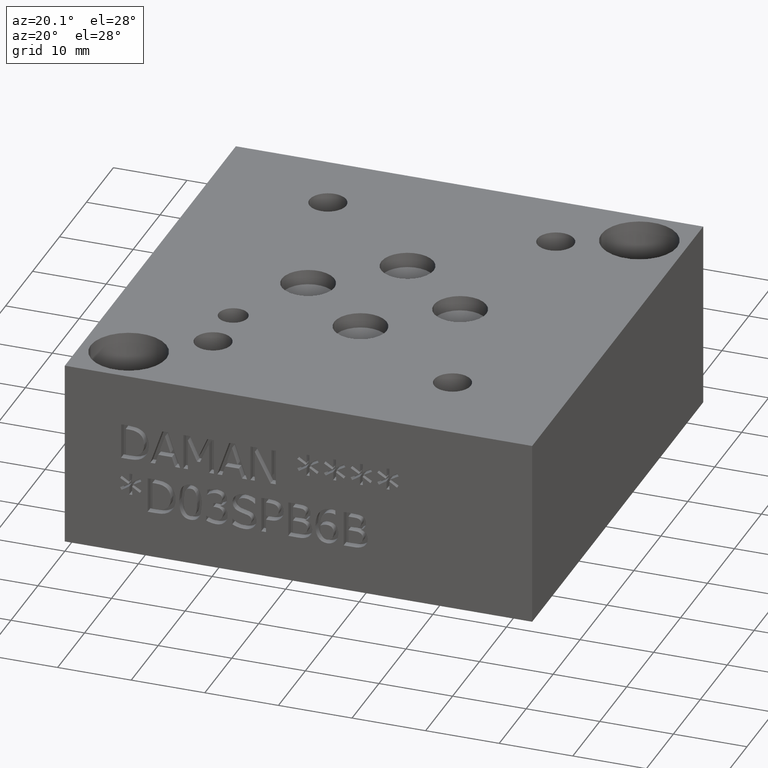
[diagram: clean part render]
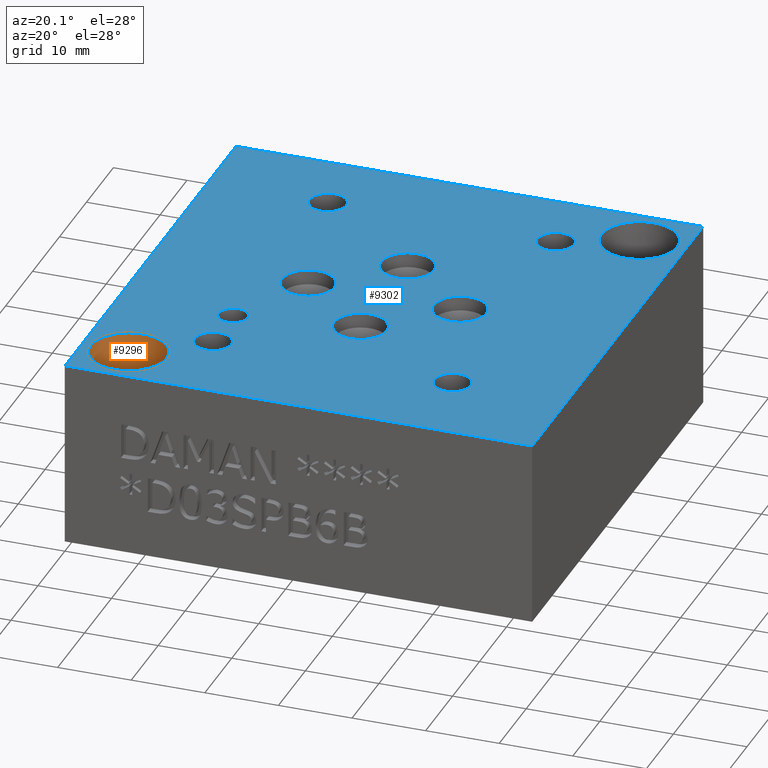
[diagram: same view with the hole feature highlighted: cylindrical wall and planar end face, labeled with their STEP entity ids]
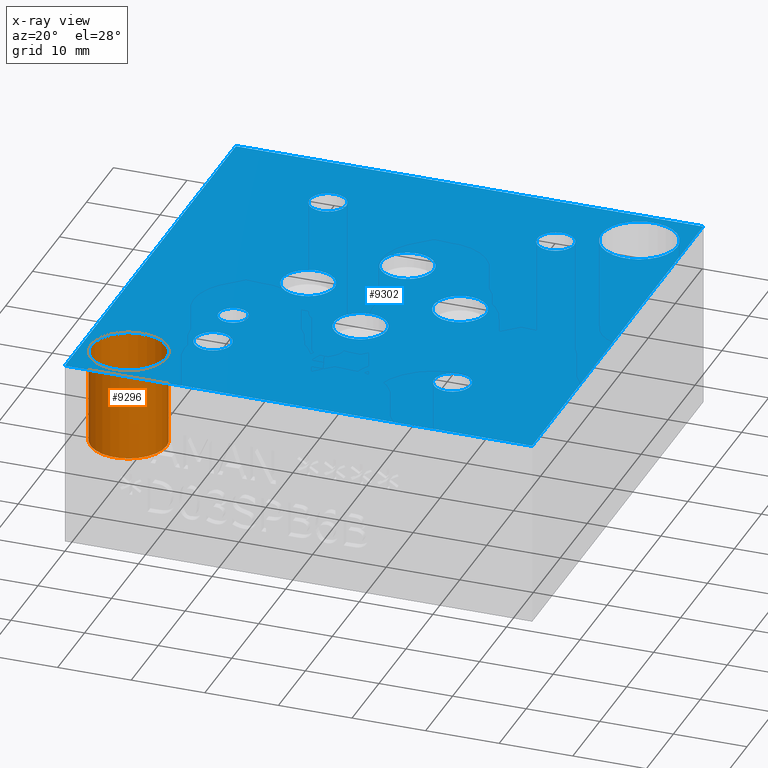
[diagram: x-ray of the same camera — body ghosted, the hole faces saturated]
A machine part, auxiliary view. The highlighted faces form one hole feature of diameter 10.3124 mm: the cylindrical wall (entity #9296, orange) and its adjacent planar end face (entity #9302, blue) — they share a circular edge in the B-rep.
The next image is the same camera in x-ray (body ghosted, the hole faces saturated) — the bore reads through the body.
Wall:
#62=CYLINDRICAL_SURFACE('',#9761,5.1562);
#179=CIRCLE('',#9758,5.1562);
#180=CIRCLE('',#9759,5.1562);
#182=CIRCLE('',#9762,5.1562);
#183=CIRCLE('',#9763,5.1562);
#1000=FACE_OUTER_BOUND('',#1530,.T.);
#1530=EDGE_LOOP('',(#8248,#8249,#8250,#8251,#8252,#8253));
#2422=LINE('',#15990,#3302);
#3302=VECTOR('',#11538,5.1562);
#4455=VERTEX_POINT('',#15979);
#4456=VERTEX_POINT('',#15980);
#4458=VERTEX_POINT('',#15986);
#4459=VERTEX_POINT('',#15987);
#5730=EDGE_CURVE('',#4455,#4456,#179,.T.);
#5731=EDGE_CURVE('',#4456,#4455,#180,.T.);
#5733=EDGE_CURVE('',#4458,#4459,#182,.T.);
#5734=EDGE_CURVE('',#4459,#4458,#183,.T.);
#5735=EDGE_CURVE('',#4459,#4456,#2422,.T.);
#8248=ORIENTED_EDGE('',*,*,#5733,.F.);
#8249=ORIENTED_EDGE('',*,*,#5734,.F.);
#8250=ORIENTED_EDGE('',*,*,#5735,.T.);
#8251=ORIENTED_EDGE('',*,*,#5730,.F.);
#8252=ORIENTED_EDGE('',*,*,#5731,.F.);
#8253=ORIENTED_EDGE('',*,*,#5735,.F.);
#9296=ADVANCED_FACE('',(#1000),#62,.F.);
#9758=AXIS2_PLACEMENT_3D('',#15981,#11526,#11527);
#9759=AXIS2_PLACEMENT_3D('',#15982,#11528,#11529);
#9761=AXIS2_PLACEMENT_3D('',#15985,#11532,#11533);
#9762=AXIS2_PLACEMENT_3D('',#15988,#11534,#11535);
#9763=AXIS2_PLACEMENT_3D('',#15989,#11536,#11537);
#11526=DIRECTION('center_axis',(0.,0.,1.));
#11527=DIRECTION('ref_axis',(1.,0.,0.));
#11528=DIRECTION('center_axis',(0.,0.,1.));
#11529=DIRECTION('ref_axis',(1.,0.,0.));
#11532=DIRECTION('center_axis',(0.,0.,1.));
#11533=DIRECTION('ref_axis',(1.,0.,0.));
#11534=DIRECTION('center_axis',(0.,0.,-1.));
#11535=DIRECTION('ref_axis',(1.,0.,0.));
#11536=DIRECTION('center_axis',(0.,0.,-1.));
#11537=DIRECTION('ref_axis',(1.,0.,0.));
#11538=DIRECTION('',(0.,0.,-1.));
#15979=CARTESIAN_POINT('',(11.5062,6.35,12.7));
#15980=CARTESIAN_POINT('',(1.1938,6.35,12.7));
#15981=CARTESIAN_POINT('Origin',(6.35,6.35,12.7));
#15982=CARTESIAN_POINT('Origin',(6.35,6.35,12.7));
#15985=CARTESIAN_POINT('Origin',(6.35,6.35,19.05));
#15986=CARTESIAN_POINT('',(11.5062,6.35,25.4));
#15987=CARTESIAN_POINT('',(1.1938,6.35,25.4));
#15988=CARTESIAN_POINT('Origin',(6.35,6.35,25.4));
#15989=CARTESIAN_POINT('Origin',(6.35,6.35,25.4));
#15990=CARTESIAN_POINT('',(1.1938,6.35,19.05));
End face:
#128=CIRCLE('',#9679,3.5687);
#129=CIRCLE('',#9680,3.5687);
#132=CIRCLE('',#9685,3.5687);
#133=CIRCLE('',#9686,3.5687);
#136=CIRCLE('',#9691,3.5687);
#137=CIRCLE('',#9692,3.5687);
#140=CIRCLE('',#9697,3.5687);
#141=CIRCLE('',#9698,3.5687);
#144=CIRCLE('',#9703,1.9812);
#145=CIRCLE('',#9704,1.9812);
#151=CIRCLE('',#9713,2.5019);
#152=CIRCLE('',#9714,2.5019);
#158=CIRCLE('',#9724,2.5019);
#159=CIRCLE('',#9725,2.5019);
#165=CIRCLE('',#9735,2.5019);
#166=CIRCLE('',#9736,2.5019);
#172=CIRCLE('',#9746,2.5019);
#173=CIRCLE('',#9747,2.5019);
#177=CIRCLE('',#9754,5.1562);
#178=CIRCLE('',#9755,5.1562);
#182=CIRCLE('',#9762,5.1562);
#183=CIRCLE('',#9763,5.1562);
#241=FACE_BOUND('',#1537,.T.);
#242=FACE_BOUND('',#1538,.T.);
#243=FACE_BOUND('',#1539,.T.);
#244=FACE_BOUND('',#1540,.T.);
#245=FACE_BOUND('',#1541,.T.);
#246=FACE_BOUND('',#1542,.T.);
#247=FACE_BOUND('',#1543,.T.);
#248=FACE_BOUND('',#1544,.T.);
#249=FACE_BOUND('',#1545,.T.);
#250=FACE_BOUND('',#1546,.T.);
#251=FACE_BOUND('',#1547,.T.);
#533=PLANE('',#9769);
#1006=FACE_OUTER_BOUND('',#1536,.T.);
#1536=EDGE_LOOP('',(#8273,#8274,#8275,#8276));
#1537=EDGE_LOOP('',(#8277,#8278));
#1538=EDGE_LOOP('',(#8279,#8280));
#1539=EDGE_LOOP('',(#8281,#8282));
#1540=EDGE_LOOP('',(#8283,#8284));
#1541=EDGE_LOOP('',(#8285,#8286));
#1542=EDGE_LOOP('',(#8287,#8288));
#1543=EDGE_LOOP('',(#8289,#8290));
#1544=EDGE_LOOP('',(#8291,#8292));
#1545=EDGE_LOOP('',(#8293,#8294));
#1546=EDGE_LOOP('',(#8295,#8296));
#1547=EDGE_LOOP('',(#8297,#8298));
#1859=LINE('',#14062,#2739);
#2424=LINE('',#15995,#3304);
#2426=LINE('',#15999,#3306);
#2428=LINE('',#16002,#3308);
#2739=VECTOR('',#10235,10.);
#3304=VECTOR('',#11544,10.);
#3306=VECTOR('',#11548,10.);
#3308=VECTOR('',#11552,10.);
#3943=VERTEX_POINT('',#14059);
#3944=VERTEX_POINT('',#14061);
#4396=VERTEX_POINT('',#15818);
#4397=VERTEX_POINT('',#15819);
#4401=VERTEX_POINT('',#15831);
#4402=VERTEX_POINT('',#15832);
#4406=VERTEX_POINT('',#15844);
#4407=VERTEX_POINT('',#15845);
#4411=VERTEX_POINT('',#15857);
#4412=VERTEX_POINT('',#15858);
#4416=VERTEX_POINT('',#15870);
#4417=VERTEX_POINT('',#15871);
#4424=VERTEX_POINT('',#15890);
#4425=VERTEX_POINT('',#15891);
#4432=VERTEX_POINT('',#15912);
#4433=VERTEX_POINT('',#15913);
#4440=VERTEX_POINT('',#15934);
#4441=VERTEX_POINT('',#15935);
#4448=VERTEX_POINT('',#15956);
#4449=VERTEX_POINT('',#15957);
#4453=VERTEX_POINT('',#15971);
#4454=VERTEX_POINT('',#15972);
#4458=VERTEX_POINT('',#15986);
#4459=VERTEX_POINT('',#15987);
#4460=VERTEX_POINT('',#15994);
#4461=VERTEX_POINT('',#15998);
#4992=EDGE_CURVE('',#3944,#3943,#1859,.T.);
#5656=EDGE_CURVE('',#4396,#4397,#128,.T.);
#5657=EDGE_CURVE('',#4397,#4396,#129,.T.);
#5662=EDGE_CURVE('',#4401,#4402,#132,.T.);
#5663=EDGE_CURVE('',#4402,#4401,#133,.T.);
#5668=EDGE_CURVE('',#4406,#4407,#136,.T.);
#5669=EDGE_CURVE('',#4407,#4406,#137,.T.);
#5674=EDGE_CURVE('',#4411,#4412,#140,.T.);
#5675=EDGE_CURVE('',#4412,#4411,#141,.T.);
#5680=EDGE_CURVE('',#4416,#4417,#144,.T.);
#5681=EDGE_CURVE('',#4417,#4416,#145,.T.);
#5689=EDGE_CURVE('',#4424,#4425,#151,.T.);
#5690=EDGE_CURVE('',#4425,#4424,#152,.T.);
#5699=EDGE_CURVE('',#4432,#4433,#158,.T.);
#5700=EDGE_CURVE('',#4433,#4432,#159,.T.);
#5709=EDGE_CURVE('',#4440,#4441,#165,.T.);
#5710=EDGE_CURVE('',#4441,#4440,#166,.T.);
#5719=EDGE_CURVE('',#4448,#4449,#172,.T.);
#5720=EDGE_CURVE('',#4449,#4448,#173,.T.);
#5726=EDGE_CURVE('',#4453,#4454,#177,.T.);
#5727=EDGE_CURVE('',#4454,#4453,#178,.T.);
#5733=EDGE_CURVE('',#4458,#4459,#182,.T.);
#5734=EDGE_CURVE('',#4459,#4458,#183,.T.);
#5737=EDGE_CURVE('',#4460,#3944,#2424,.T.);
#5739=EDGE_CURVE('',#4461,#4460,#2426,.T.);
#5741=EDGE_CURVE('',#3943,#4461,#2428,.T.);
#8273=ORIENTED_EDGE('',*,*,#4992,.T.);
#8274=ORIENTED_EDGE('',*,*,#5741,.T.);
#8275=ORIENTED_EDGE('',*,*,#5739,.T.);
#8276=ORIENTED_EDGE('',*,*,#5737,.T.);
#8277=ORIENTED_EDGE('',*,*,#5656,.T.);
#8278=ORIENTED_EDGE('',*,*,#5657,.T.);
#8279=ORIENTED_EDGE('',*,*,#5662,.T.);
#8280=ORIENTED_EDGE('',*,*,#5663,.T.);
#8281=ORIENTED_EDGE('',*,*,#5668,.T.);
#8282=ORIENTED_EDGE('',*,*,#5669,.T.);
#8283=ORIENTED_EDGE('',*,*,#5674,.T.);
#8284=ORIENTED_EDGE('',*,*,#5675,.T.);
#8285=ORIENTED_EDGE('',*,*,#5680,.T.);
#8286=ORIENTED_EDGE('',*,*,#5681,.T.);
#8287=ORIENTED_EDGE('',*,*,#5689,.T.);
#8288=ORIENTED_EDGE('',*,*,#5690,.T.);
#8289=ORIENTED_EDGE('',*,*,#5699,.T.);
#8290=ORIENTED_EDGE('',*,*,#5700,.T.);
#8291=ORIENTED_EDGE('',*,*,#5709,.T.);
#8292=ORIENTED_EDGE('',*,*,#5710,.T.);
#8293=ORIENTED_EDGE('',*,*,#5719,.T.);
#8294=ORIENTED_EDGE('',*,*,#5720,.T.);
#8295=ORIENTED_EDGE('',*,*,#5726,.T.);
#8296=ORIENTED_EDGE('',*,*,#5727,.T.);
#8297=ORIENTED_EDGE('',*,*,#5733,.T.);
#8298=ORIENTED_EDGE('',*,*,#5734,.T.);
#9302=ADVANCED_FACE('',(#1006,#241,#242,#243,#244,#245,#246,#247,#248,#249,
#250,#251),#533,.T.);
#9679=AXIS2_PLACEMENT_3D('',#15820,#11345,#11346);
#9680=AXIS2_PLACEMENT_3D('',#15821,#11347,#11348);
#9685=AXIS2_PLACEMENT_3D('',#15833,#11359,#11360);
#9686=AXIS2_PLACEMENT_3D('',#15834,#11361,#11362);
#9691=AXIS2_PLACEMENT_3D('',#15846,#11373,#11374);
#9692=AXIS2_PLACEMENT_3D('',#15847,#11375,#11376);
#9697=AXIS2_PLACEMENT_3D('',#15859,#11387,#11388);
#9698=AXIS2_PLACEMENT_3D('',#15860,#11389,#11390);
#9703=AXIS2_PLACEMENT_3D('',#15872,#11401,#11402);
#9704=AXIS2_PLACEMENT_3D('',#15873,#11403,#11404);
#9713=AXIS2_PLACEMENT_3D('',#15892,#11423,#11424);
#9714=AXIS2_PLACEMENT_3D('',#15893,#11425,#11426);
#9724=AXIS2_PLACEMENT_3D('',#15914,#11448,#11449);
#9725=AXIS2_PLACEMENT_3D('',#15915,#11450,#11451);
#9735=AXIS2_PLACEMENT_3D('',#15936,#11473,#11474);
#9736=AXIS2_PLACEMENT_3D('',#15937,#11475,#11476);
#9746=AXIS2_PLACEMENT_3D('',#15958,#11498,#11499);
#9747=AXIS2_PLACEMENT_3D('',#15959,#11500,#11501);
#9754=AXIS2_PLACEMENT_3D('',#15973,#11516,#11517);
#9755=AXIS2_PLACEMENT_3D('',#15974,#11518,#11519);
#9762=AXIS2_PLACEMENT_3D('',#15988,#11534,#11535);
#9763=AXIS2_PLACEMENT_3D('',#15989,#11536,#11537);
#9769=AXIS2_PLACEMENT_3D('',#16004,#11555,#11556);
#10235=DIRECTION('',(1.,0.,0.));
#11345=DIRECTION('center_axis',(0.,0.,-1.));
#11346=DIRECTION('ref_axis',(1.,0.,0.));
#11347=DIRECTION('center_axis',(0.,0.,-1.));
#11348=DIRECTION('ref_axis',(1.,0.,0.));
#11359=DIRECTION('center_axis',(0.,0.,-1.));
#11360=DIRECTION('ref_axis',(1.,0.,0.));
#11361=DIRECTION('center_axis',(0.,0.,-1.));
#11362=DIRECTION('ref_axis',(1.,0.,0.));
#11373=DIRECTION('center_axis',(0.,0.,-1.));
#11374=DIRECTION('ref_axis',(1.,0.,0.));
#11375=DIRECTION('center_axis',(0.,0.,-1.));
#11376=DIRECTION('ref_axis',(1.,0.,0.));
#11387=DIRECTION('center_axis',(0.,0.,-1.));
#11388=DIRECTION('ref_axis',(1.,0.,0.));
#11389=DIRECTION('center_axis',(0.,0.,-1.));
#11390=DIRECTION('ref_axis',(1.,0.,0.));
#11401=DIRECTION('center_axis',(0.,0.,-1.));
#11402=DIRECTION('ref_axis',(1.,0.,0.));
#11403=DIRECTION('center_axis',(0.,0.,-1.));
#11404=DIRECTION('ref_axis',(1.,0.,0.));
#11423=DIRECTION('center_axis',(0.,0.,-1.));
#11424=DIRECTION('ref_axis',(1.,0.,0.));
#11425=DIRECTION('center_axis',(0.,0.,-1.));
#11426=DIRECTION('ref_axis',(1.,0.,0.));
#11448=DIRECTION('center_axis',(0.,0.,-1.));
#11449=DIRECTION('ref_axis',(1.,0.,0.));
#11450=DIRECTION('center_axis',(0.,0.,-1.));
#11451=DIRECTION('ref_axis',(1.,0.,0.));
#11473=DIRECTION('center_axis',(0.,0.,-1.));
#11474=DIRECTION('ref_axis',(1.,0.,0.));
#11475=DIRECTION('center_axis',(0.,0.,-1.));
#11476=DIRECTION('ref_axis',(1.,0.,0.));
#11498=DIRECTION('center_axis',(0.,0.,-1.));
#11499=DIRECTION('ref_axis',(1.,0.,0.));
#11500=DIRECTION('center_axis',(0.,0.,-1.));
#11501=DIRECTION('ref_axis',(1.,0.,0.));
#11516=DIRECTION('center_axis',(0.,0.,-1.));
#11517=DIRECTION('ref_axis',(1.,0.,0.));
#11518=DIRECTION('center_axis',(0.,0.,-1.));
#11519=DIRECTION('ref_axis',(1.,0.,0.));
#11534=DIRECTION('center_axis',(0.,0.,-1.));
#11535=DIRECTION('ref_axis',(1.,0.,0.));
#11536=DIRECTION('center_axis',(0.,0.,-1.));
#11537=DIRECTION('ref_axis',(1.,0.,0.));
#11544=DIRECTION('',(0.,-1.,0.));
#11548=DIRECTION('',(-1.,0.,0.));
#11552=DIRECTION('',(0.,1.,0.));
#11555=DIRECTION('center_axis',(0.,0.,1.));
#11556=DIRECTION('ref_axis',(1.,0.,0.));
#14059=CARTESIAN_POINT('',(63.5,0.,25.4));
#14061=CARTESIAN_POINT('',(0.,0.,25.4));
#14062=CARTESIAN_POINT('',(0.,0.,25.4));
#15818=CARTESIAN_POINT('',(35.3187,40.4876,25.4));
#15819=CARTESIAN_POINT('',(28.1813,40.4876,25.4));
#15820=CARTESIAN_POINT('Origin',(31.75,40.4876,25.4));
#15821=CARTESIAN_POINT('Origin',(31.75,40.4876,25.4));
#15831=CARTESIAN_POINT('',(25.0063,31.75,25.4));
#15832=CARTESIAN_POINT('',(17.8689,31.75,25.4));
#15833=CARTESIAN_POINT('Origin',(21.4376,31.75,25.4));
#15834=CARTESIAN_POINT('Origin',(21.4376,31.75,25.4));
#15844=CARTESIAN_POINT('',(45.6565,31.75,25.4));
#15845=CARTESIAN_POINT('',(38.5191,31.75,25.4));
#15846=CARTESIAN_POINT('Origin',(42.0878,31.75,25.4));
#15847=CARTESIAN_POINT('Origin',(42.0878,31.75,25.4));
#15857=CARTESIAN_POINT('',(35.3187,23.0124,25.4));
#15858=CARTESIAN_POINT('',(28.1813,23.0124,25.4));
#15859=CARTESIAN_POINT('Origin',(31.75,23.0124,25.4));
#15860=CARTESIAN_POINT('Origin',(31.75,23.0124,25.4));
#15870=CARTESIAN_POINT('',(17.4752,20.193,25.4));
#15871=CARTESIAN_POINT('',(13.5128,20.193,25.4));
#15872=CARTESIAN_POINT('Origin',(15.494,20.193,25.4));
#15873=CARTESIAN_POINT('Origin',(15.494,20.193,25.4));
#15890=CARTESIAN_POINT('',(50.5333,12.7,25.4));
#15891=CARTESIAN_POINT('',(45.5295,12.7,25.4));
#15892=CARTESIAN_POINT('Origin',(48.0314,12.7,25.4));
#15893=CARTESIAN_POINT('Origin',(48.0314,12.7,25.4));
#15912=CARTESIAN_POINT('',(18.7833,53.1876,25.4));
#15913=CARTESIAN_POINT('',(13.7795,53.1876,25.4));
#15914=CARTESIAN_POINT('Origin',(16.2814,53.1876,25.4));
#15915=CARTESIAN_POINT('Origin',(16.2814,53.1876,25.4));
#15934=CARTESIAN_POINT('',(49.7459,53.1876,25.4));
#15935=CARTESIAN_POINT('',(44.7421,53.1876,25.4));
#15936=CARTESIAN_POINT('Origin',(47.244,53.1876,25.4));
#15937=CARTESIAN_POINT('Origin',(47.244,53.1876,25.4));
#15956=CARTESIAN_POINT('',(17.9959,12.7,25.4));
#15957=CARTESIAN_POINT('',(12.9921,12.7,25.4));
#15958=CARTESIAN_POINT('Origin',(15.494,12.7,25.4));
#15959=CARTESIAN_POINT('Origin',(15.494,12.7,25.4));
#15971=CARTESIAN_POINT('',(62.3062,57.15,25.4));
#15972=CARTESIAN_POINT('',(51.9938,57.15,25.4));
#15973=CARTESIAN_POINT('Origin',(57.15,57.15,25.4));
#15974=CARTESIAN_POINT('Origin',(57.15,57.15,25.4));
#15986=CARTESIAN_POINT('',(11.5062,6.35,25.4));
#15987=CARTESIAN_POINT('',(1.1938,6.35,25.4));
#15988=CARTESIAN_POINT('Origin',(6.35,6.35,25.4));
#15989=CARTESIAN_POINT('Origin',(6.35,6.35,25.4));
#15994=CARTESIAN_POINT('',(0.,63.5,25.4));
#15995=CARTESIAN_POINT('',(0.,63.5,25.4));
#15998=CARTESIAN_POINT('',(63.5,63.5,25.4));
#15999=CARTESIAN_POINT('',(63.5,63.5,25.4));
#16002=CARTESIAN_POINT('',(63.5,0.,25.4));
#16004=CARTESIAN_POINT('Origin',(31.75,31.75,25.4));